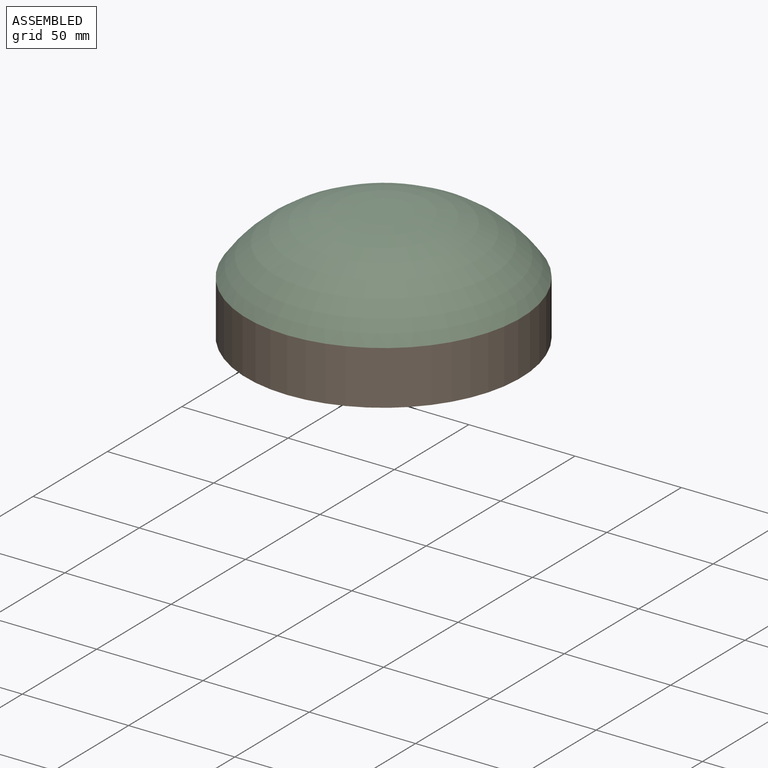
[diagram: assembled view]
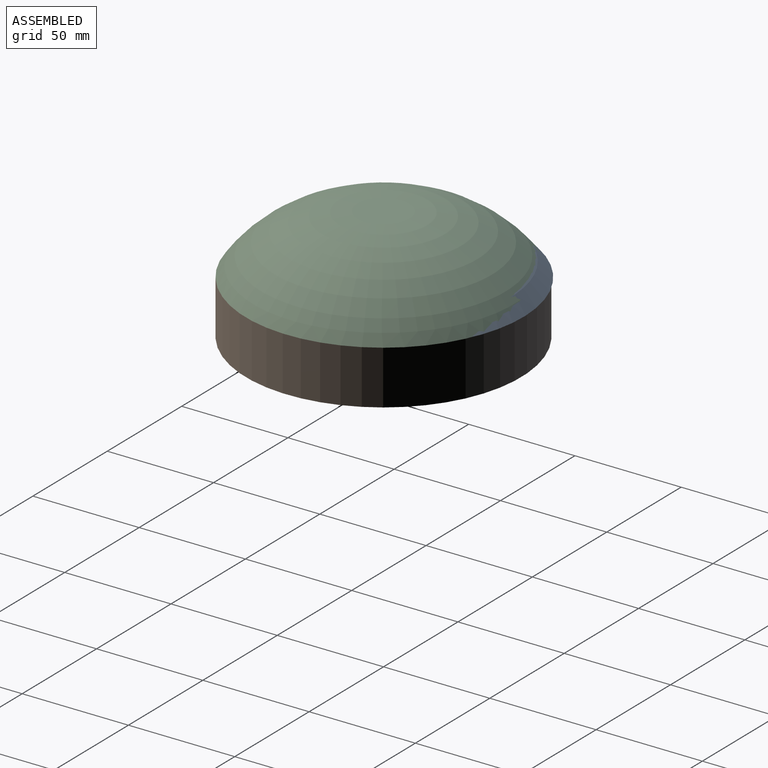
[diagram: assembled view, second angle]
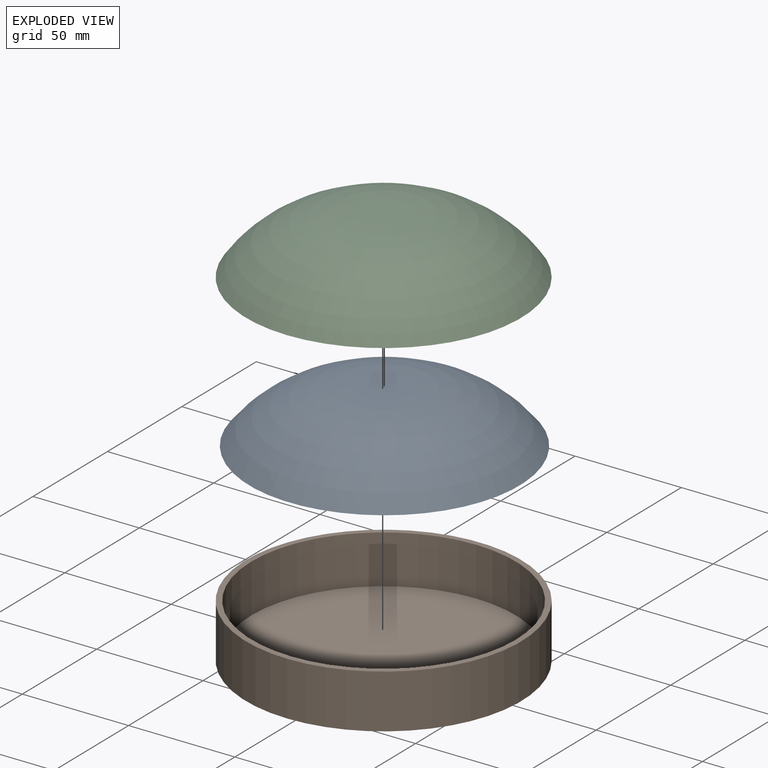
[diagram: exploded view]
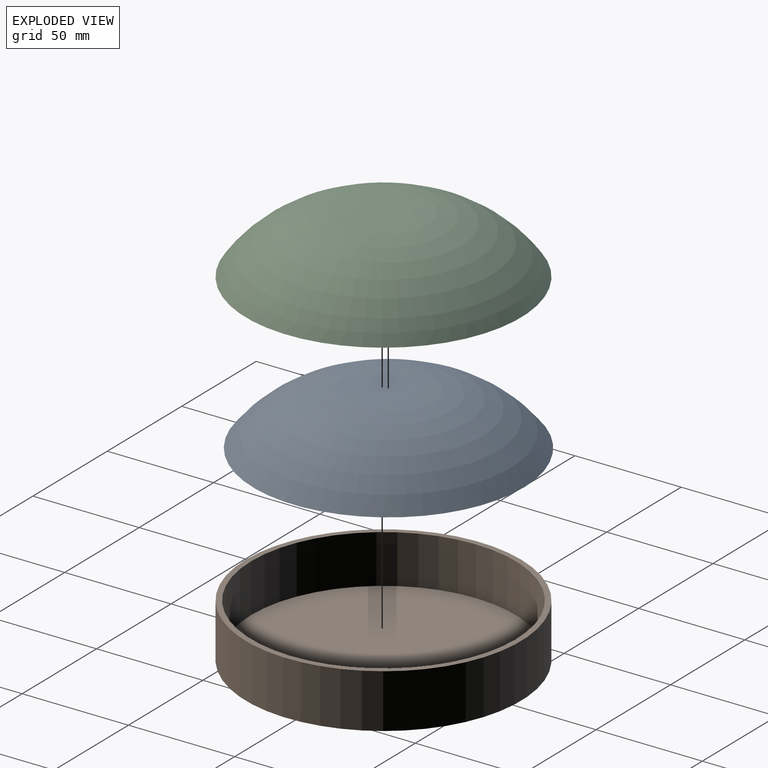
[diagram: exploded view, second angle]
ASSEMBLY  parts=3 mates=2
PART A: 5 faces, bbox 127x25.4x127 mm
  f0: plane 25.4x25.4mm, normal (0,-1,0), area 506.7mm2, adj f2
  f1: plane 127x127mm, normal (0,1,0), area 1249.5mm2, adj f2,f4
  f2: torus R=12.7mm, axis (0,1,0), area 14832.8mm2, adj f0,f1
  f3: plane 25.4x25.4mm, normal (0,1,0), area 506.7mm2, adj f4
  f4: torus R=12.7mm, axis (0,1,0), area 13112.8mm2, adj f1,f3
PART B: 5 faces, bbox 129.5x25.4x129.5 mm
  f0: cylinder r=64.77mm len=129.54mm, axis (0,1,0), area 10336.8mm2, adj f1,f2
  f1: plane 129.54x129.54mm, normal (0,-1,0), area 1013.4mm2, adj f0,f3
  f2: plane 129.54x129.54mm, normal (0,1,0), area 13179.5mm2, adj f0
  f3: cylinder r=62.23mm len=124.46mm, axis (0,1,0), area 8938.3mm2, adj f1,f4
  f4: plane 124.46x124.46mm, normal (0,-1,0), area 12166mm2, adj f3
PART C: 5 faces, bbox 129.5x27.9x129.5 mm
  f0: plane 24.32x24.32mm, normal (0,-1,0), area 464.6mm2, adj f2
  f1: plane 129.54x129.54mm, normal (0,1,0), area 1229.7mm2, adj f2,f4
  f2: torus R=12.16mm, axis (0,1,0), area 15885mm2, adj f0,f1
  f3: plane 24.32x24.32mm, normal (0,1,0), area 464.6mm2, adj f4
  f4: torus R=12.16mm, axis (0,1,0), area 14144.3mm2, adj f1,f3
PLACE A rot(axis=(-0.99,0.09,-0.09),90.4deg) t=(-0.84,1.77,25.4)mm
PLACE B rot(axis=(-1,0,0),90deg) t=(0,0,0)mm
PLACE C rot(axis=(-1,0,0),90deg) t=(0,0,25.4)mm
MATE planar B.f0 <-> A.f2  axis (0,0,1) through (0,0,25.4)mm
MATE slider B.f0 <-> C.f2  axis (0,0,1) through (0,0,25.4)mm
